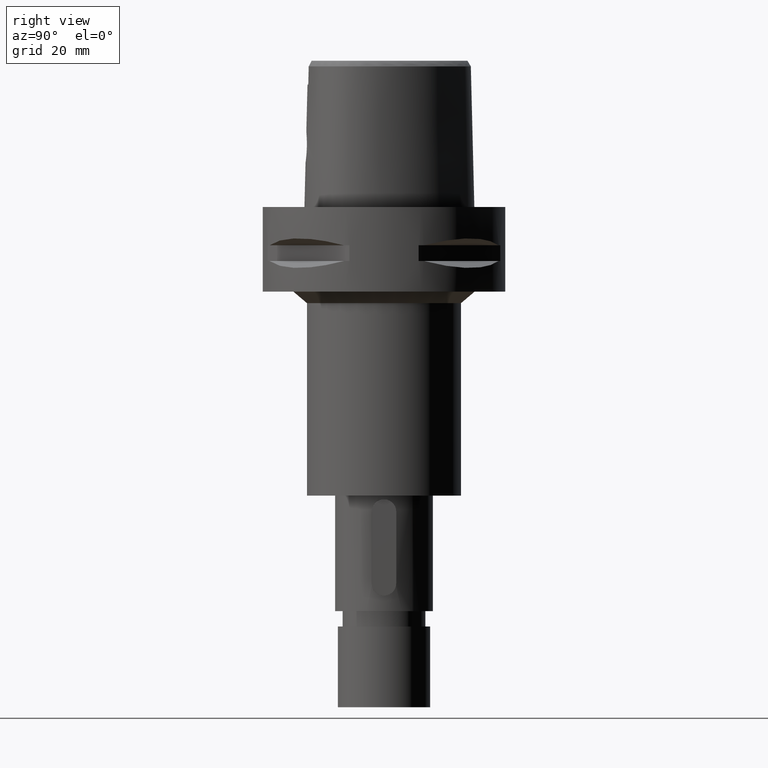
[diagram: clean part render]
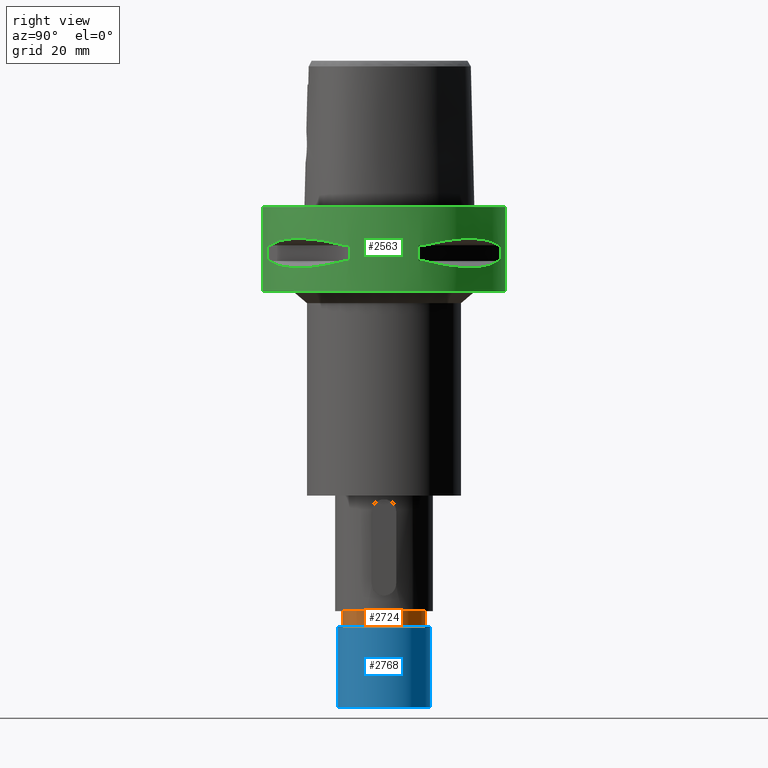
[diagram: same view with three faces highlighted in distinct colors, each labeled with its STEP entity id]
A machine part, right view with three faces highlighted in distinct colors.
Their STEP definitions:

[orange] entity #2724 — the highlighted cylindrical surface (partial cylindrical patch) has radius 10.75 mm, axis along (0, 0, -1).
#648=CARTESIAN_POINT('',(0.E0,1.304248841092E-14,-1.05E2));
#649=DIRECTION('',(0.E0,0.E0,-1.E0));
#650=DIRECTION('',(0.E0,1.E0,0.E0));
#651=AXIS2_PLACEMENT_3D('',#648,#649,#650);
#664=DIRECTION('',(0.E0,0.E0,-1.E0));
#665=VECTOR('',#664,4.E0);
#666=CARTESIAN_POINT('',(0.E0,1.075E1,-1.05E2));
#667=LINE('',#666,#665);
#671=DIRECTION('',(0.E0,0.E0,-1.E0));
#672=VECTOR('',#671,4.E0);
#673=CARTESIAN_POINT('',(0.E0,-1.075E1,-1.05E2));
#674=LINE('',#673,#672);
#702=CARTESIAN_POINT('',(0.E0,1.304248841092E-14,-1.09E2));
#703=DIRECTION('',(0.E0,0.E0,1.E0));
#704=DIRECTION('',(0.E0,-1.E0,0.E0));
#705=AXIS2_PLACEMENT_3D('',#702,#703,#704);
#1699=CARTESIAN_POINT('',(0.E0,1.075E1,-1.05E2));
#1700=CARTESIAN_POINT('',(0.E0,-1.075E1,-1.05E2));
#1701=VERTEX_POINT('',#1699);
#1702=VERTEX_POINT('',#1700);
#1703=CARTESIAN_POINT('',(0.E0,1.075E1,-1.09E2));
#1704=VERTEX_POINT('',#1703);
#1705=CARTESIAN_POINT('',(0.E0,-1.075E1,-1.09E2));
#1706=VERTEX_POINT('',#1705);
#2710=CARTESIAN_POINT('',(0.E0,1.304248841092E-14,6.5E0));
#2711=DIRECTION('',(0.E0,0.E0,-1.E0));
#2712=DIRECTION('',(0.E0,-1.E0,0.E0));
#2713=AXIS2_PLACEMENT_3D('',#2710,#2711,#2712);
#2714=CYLINDRICAL_SURFACE('',#2713,1.075E1);
#2716=ORIENTED_EDGE('',*,*,#2715,.T.);
#2718=ORIENTED_EDGE('',*,*,#2717,.F.);
#2720=ORIENTED_EDGE('',*,*,#2719,.F.);
#2721=ORIENTED_EDGE('',*,*,#2703,.F.);
#2722=EDGE_LOOP('',(#2716,#2718,#2720,#2721));
#2723=FACE_OUTER_BOUND('',#2722,.F.);
#652=CIRCLE('',#651,1.075E1);
#706=CIRCLE('',#705,1.075E1);
#2703=EDGE_CURVE('',#1701,#1702,#652,.T.);
#2715=EDGE_CURVE('',#1701,#1704,#667,.T.);
#2717=EDGE_CURVE('',#1706,#1704,#706,.T.);
#2719=EDGE_CURVE('',#1702,#1706,#674,.T.);
#2724=ADVANCED_FACE('',(#2723),#2714,.T.);

[blue] entity #2768 — the highlighted cylindrical surface (partial cylindrical patch) has radius 12 mm, axis along (0, 0, -1).
#678=CARTESIAN_POINT('',(0.E0,1.304248841092E-14,-1.09E2));
#679=DIRECTION('',(0.E0,0.E0,-1.E0));
#680=DIRECTION('',(0.E0,1.E0,0.E0));
#681=AXIS2_PLACEMENT_3D('',#678,#679,#680);
#710=DIRECTION('',(0.E0,0.E0,-1.E0));
#711=VECTOR('',#710,2.1E1);
#712=CARTESIAN_POINT('',(0.E0,1.2E1,-1.09E2));
#713=LINE('',#712,#711);
#717=DIRECTION('',(0.E0,0.E0,-1.E0));
#718=VECTOR('',#717,2.1E1);
#719=CARTESIAN_POINT('',(0.E0,-1.2E1,-1.09E2));
#720=LINE('',#719,#718);
#732=CARTESIAN_POINT('',(0.E0,1.304248841092E-14,-1.3E2));
#733=DIRECTION('',(0.E0,0.E0,1.E0));
#734=DIRECTION('',(0.E0,-1.E0,0.E0));
#735=AXIS2_PLACEMENT_3D('',#732,#733,#734);
#1707=CARTESIAN_POINT('',(0.E0,1.2E1,-1.09E2));
#1708=CARTESIAN_POINT('',(0.E0,-1.2E1,-1.09E2));
#1709=VERTEX_POINT('',#1707);
#1710=VERTEX_POINT('',#1708);
#1711=CARTESIAN_POINT('',(0.E0,1.2E1,-1.3E2));
#1712=VERTEX_POINT('',#1711);
#1713=CARTESIAN_POINT('',(0.E0,-1.2E1,-1.3E2));
#1714=VERTEX_POINT('',#1713);
#2754=CARTESIAN_POINT('',(0.E0,1.304248841092E-14,6.5E0));
#2755=DIRECTION('',(0.E0,0.E0,-1.E0));
#2756=DIRECTION('',(0.E0,-1.E0,0.E0));
#2757=AXIS2_PLACEMENT_3D('',#2754,#2755,#2756);
#2758=CYLINDRICAL_SURFACE('',#2757,1.2E1);
#2760=ORIENTED_EDGE('',*,*,#2759,.T.);
#2762=ORIENTED_EDGE('',*,*,#2761,.F.);
#2764=ORIENTED_EDGE('',*,*,#2763,.F.);
#2765=ORIENTED_EDGE('',*,*,#2743,.F.);
#2766=EDGE_LOOP('',(#2760,#2762,#2764,#2765));
#2767=FACE_OUTER_BOUND('',#2766,.F.);
#682=CIRCLE('',#681,1.2E1);
#736=CIRCLE('',#735,1.2E1);
#2743=EDGE_CURVE('',#1709,#1710,#682,.T.);
#2759=EDGE_CURVE('',#1709,#1712,#713,.T.);
#2761=EDGE_CURVE('',#1714,#1712,#736,.T.);
#2763=EDGE_CURVE('',#1710,#1714,#720,.T.);
#2768=ADVANCED_FACE('',(#2767),#2758,.T.);

[green] entity #2563 — the highlighted cylindrical surface (partial cylindrical patch) has radius 31.5 mm, axis along (0, 0, -1).
#290=CARTESIAN_POINT('',(0.E0,1.304248841092E-14,0.E0));
#291=DIRECTION('',(0.E0,0.E0,-1.E0));
#292=DIRECTION('',(0.E0,1.E0,0.E0));
#293=AXIS2_PLACEMENT_3D('',#290,#291,#292);
#382=DIRECTION('',(0.E0,0.E0,-1.E0));
#383=VECTOR('',#382,2.2E1);
#384=CARTESIAN_POINT('',(0.E0,-3.15E1,0.E0));
#385=LINE('',#384,#383);
#439=DIRECTION('',(0.E0,0.E0,-1.E0));
#440=VECTOR('',#439,2.2E1);
#441=CARTESIAN_POINT('',(0.E0,3.15E1,0.E0));
#442=LINE('',#441,#440);
#446=DIRECTION('',(0.E0,0.E0,-1.E0));
#447=VECTOR('',#446,4.1E0);
#448=CARTESIAN_POINT('',(8.981198972018E0,-3.019251670572E1,-9.95E0));
#449=LINE('',#448,#447);
#453=CARTESIAN_POINT('',(1.044775724750E1,-2.971690375018E1,-1.405E1));
#454=CARTESIAN_POINT('',(1.282388988809E1,-2.888151197365E1,-1.467900482380E1));
#455=CARTESIAN_POINT('',(1.711282138769E1,-2.674739463903E1,-1.555870402292E1));
#456=CARTESIAN_POINT('',(2.244574140438E1,-2.244574140438E1,-1.597971692370E1));
#457=CARTESIAN_POINT('',(2.674739463903E1,-1.711282138769E1,-1.555870402292E1));
#458=CARTESIAN_POINT('',(2.888151197365E1,-1.282388988809E1,-1.467900482380E1));
#459=CARTESIAN_POINT('',(2.971690375018E1,-1.044775724750E1,-1.405E1));
#464=DIRECTION('',(0.E0,0.E0,1.E0));
#465=VECTOR('',#464,4.1E0);
#466=CARTESIAN_POINT('',(3.019251670572E1,-8.981198972018E0,-1.405E1));
#467=LINE('',#466,#465);
#471=DIRECTION('',(0.E0,0.E0,-1.E0));
#472=VECTOR('',#471,4.1E0);
#473=CARTESIAN_POINT('',(3.019251670572E1,8.981198972018E0,-9.95E0));
#474=LINE('',#473,#472);
#478=CARTESIAN_POINT('',(2.971690375018E1,1.044775724750E1,-1.405E1));
#479=CARTESIAN_POINT('',(2.888151197365E1,1.282388988809E1,-1.467900482380E1));
#480=CARTESIAN_POINT('',(2.674739463903E1,1.711282138769E1,-1.555870402292E1));
#481=CARTESIAN_POINT('',(2.244574140438E1,2.244574140438E1,-1.597971692370E1));
#482=CARTESIAN_POINT('',(1.711282138769E1,2.674739463903E1,-1.555870402292E1));
#483=CARTESIAN_POINT('',(1.282388988809E1,2.888151197365E1,-1.467900482380E1));
#484=CARTESIAN_POINT('',(1.044775724750E1,2.971690375018E1,-1.405E1));
#489=DIRECTION('',(0.E0,0.E0,1.E0));
#490=VECTOR('',#489,4.1E0);
#491=CARTESIAN_POINT('',(8.981198972018E0,3.019251670572E1,-1.405E1));
#492=LINE('',#491,#490);
#504=CARTESIAN_POINT('',(0.E0,1.304248841092E-14,-2.2E1));
#505=DIRECTION('',(0.E0,0.E0,1.E0));
#506=DIRECTION('',(0.E0,-1.E0,0.E0));
#507=AXIS2_PLACEMENT_3D('',#504,#505,#506);
#866=CARTESIAN_POINT('',(1.044775724750E1,-2.971690375018E1,-9.949999999999E0));
#867=CARTESIAN_POINT('',(1.282388988809E1,-2.888151197365E1,-9.320995176198E0));
#868=CARTESIAN_POINT('',(1.711282138769E1,-2.674739463903E1,-8.441295977074E0));
#869=CARTESIAN_POINT('',(2.244574140438E1,-2.244574140438E1,-8.020283076294E0));
#870=CARTESIAN_POINT('',(2.674739463903E1,-1.711282138769E1,-8.441295977074E0));
#871=CARTESIAN_POINT('',(2.888151197365E1,-1.282388988809E1,-9.320995176198E0));
#872=CARTESIAN_POINT('',(2.971690375018E1,-1.044775724750E1,-9.949999999999E0));
#877=CARTESIAN_POINT('',(0.E0,1.304248841092E-14,-9.95E0));
#878=DIRECTION('',(0.E0,0.E0,1.E0));
#879=DIRECTION('',(9.433937698469E-1,-3.316748332541E-1,0.E0));
#880=AXIS2_PLACEMENT_3D('',#877,#878,#879);
#885=CARTESIAN_POINT('',(0.E0,1.304248841092E-14,-9.95E0));
#886=DIRECTION('',(0.E0,0.E0,1.E0));
#887=DIRECTION('',(2.851174276832E-1,-9.584925938323E-1,0.E0));
#888=AXIS2_PLACEMENT_3D('',#885,#886,#887);
#907=CARTESIAN_POINT('',(0.E0,1.304248841092E-14,-1.405E1));
#908=DIRECTION('',(0.E0,0.E0,-1.E0));
#909=DIRECTION('',(9.584925938323E-1,-2.851174276832E-1,0.E0));
#910=AXIS2_PLACEMENT_3D('',#907,#908,#909);
#915=CARTESIAN_POINT('',(0.E0,1.304248841092E-14,-1.405E1));
#916=DIRECTION('',(0.E0,0.E0,-1.E0));
#917=DIRECTION('',(3.316748332541E-1,-9.433937698469E-1,0.E0));
#918=AXIS2_PLACEMENT_3D('',#915,#916,#917);
#937=CARTESIAN_POINT('',(2.971690375018E1,1.044775724750E1,-9.949999999999E0));
#938=CARTESIAN_POINT('',(2.888151197365E1,1.282388988809E1,-9.320995176198E0));
#939=CARTESIAN_POINT('',(2.674739463903E1,1.711282138769E1,-8.441295977074E0));
#940=CARTESIAN_POINT('',(2.244574140438E1,2.244574140438E1,-8.020283076294E0));
#941=CARTESIAN_POINT('',(1.711282138769E1,2.674739463903E1,-8.441295977074E0));
#942=CARTESIAN_POINT('',(1.282388988809E1,2.888151197365E1,-9.320995176198E0));
#943=CARTESIAN_POINT('',(1.044775724750E1,2.971690375018E1,-9.949999999999E0));
#948=CARTESIAN_POINT('',(0.E0,1.304248841092E-14,-9.95E0));
#949=DIRECTION('',(0.E0,0.E0,1.E0));
#950=DIRECTION('',(3.316748332541E-1,9.433937698469E-1,0.E0));
#951=AXIS2_PLACEMENT_3D('',#948,#949,#950);
#956=CARTESIAN_POINT('',(0.E0,1.304248841092E-14,-9.95E0));
#957=DIRECTION('',(0.E0,0.E0,1.E0));
#958=DIRECTION('',(9.584925938323E-1,2.851174276832E-1,0.E0));
#959=AXIS2_PLACEMENT_3D('',#956,#957,#958);
#978=CARTESIAN_POINT('',(0.E0,1.304248841092E-14,-1.405E1));
#979=DIRECTION('',(0.E0,0.E0,-1.E0));
#980=DIRECTION('',(2.851174276832E-1,9.584925938323E-1,0.E0));
#981=AXIS2_PLACEMENT_3D('',#978,#979,#980);
#986=CARTESIAN_POINT('',(0.E0,1.304248841092E-14,-1.405E1));
#987=DIRECTION('',(0.E0,0.E0,-1.E0));
#988=DIRECTION('',(9.433937698469E-1,3.316748332541E-1,0.E0));
#989=AXIS2_PLACEMENT_3D('',#986,#987,#988);
#1610=CARTESIAN_POINT('',(0.E0,-3.15E1,0.E0));
#1611=CARTESIAN_POINT('',(0.E0,3.15E1,0.E0));
#1612=VERTEX_POINT('',#1610);
#1613=VERTEX_POINT('',#1611);
#1614=CARTESIAN_POINT('',(0.E0,3.15E1,-2.2E1));
#1615=VERTEX_POINT('',#1614);
#1616=CARTESIAN_POINT('',(0.E0,-3.15E1,-2.2E1));
#1617=VERTEX_POINT('',#1616);
#1644=VERTEX_POINT('',#866);
#1645=VERTEX_POINT('',#872);
#1646=CARTESIAN_POINT('',(8.981198972020E0,-3.019251670572E1,-9.95E0));
#1647=VERTEX_POINT('',#1646);
#1648=CARTESIAN_POINT('',(8.981198972018E0,-3.019251670572E1,-1.405E1));
#1649=VERTEX_POINT('',#1648);
#1650=CARTESIAN_POINT('',(1.044775724750E1,-2.971690375018E1,-1.405E1));
#1651=VERTEX_POINT('',#1650);
#1652=VERTEX_POINT('',#459);
#1653=CARTESIAN_POINT('',(3.019251670572E1,-8.981198972020E0,-1.405E1));
#1654=VERTEX_POINT('',#1653);
#1655=CARTESIAN_POINT('',(3.019251670572E1,-8.981198972018E0,-9.95E0));
#1656=VERTEX_POINT('',#1655);
#1657=VERTEX_POINT('',#937);
#1658=VERTEX_POINT('',#943);
#1659=CARTESIAN_POINT('',(3.019251670572E1,8.981198972020E0,-9.95E0));
#1660=VERTEX_POINT('',#1659);
#1661=CARTESIAN_POINT('',(3.019251670572E1,8.981198972018E0,-1.405E1));
#1662=VERTEX_POINT('',#1661);
#1663=CARTESIAN_POINT('',(2.971690375018E1,1.044775724750E1,-1.405E1));
#1664=VERTEX_POINT('',#1663);
#1665=VERTEX_POINT('',#484);
#1666=CARTESIAN_POINT('',(8.981198972020E0,3.019251670572E1,-1.405E1));
#1667=VERTEX_POINT('',#1666);
#1668=CARTESIAN_POINT('',(8.981198972018E0,3.019251670572E1,-9.95E0));
#1669=VERTEX_POINT('',#1668);
#2515=CARTESIAN_POINT('',(0.E0,1.304248841092E-14,6.5E0));
#2516=DIRECTION('',(0.E0,0.E0,-1.E0));
#2517=DIRECTION('',(0.E0,-1.E0,0.E0));
#2518=AXIS2_PLACEMENT_3D('',#2515,#2516,#2517);
#2519=CYLINDRICAL_SURFACE('',#2518,3.15E1);
#2520=ORIENTED_EDGE('',*,*,#2469,.T.);
#2522=ORIENTED_EDGE('',*,*,#2521,.F.);
#2523=ORIENTED_EDGE('',*,*,#2472,.F.);
#2524=ORIENTED_EDGE('',*,*,#2454,.F.);
#2525=EDGE_LOOP('',(#2520,#2522,#2523,#2524));
#2526=FACE_OUTER_BOUND('',#2525,.F.);
#2528=ORIENTED_EDGE('',*,*,#2527,.F.);
#2530=ORIENTED_EDGE('',*,*,#2529,.F.);
#2532=ORIENTED_EDGE('',*,*,#2531,.T.);
#2534=ORIENTED_EDGE('',*,*,#2533,.F.);
#2536=ORIENTED_EDGE('',*,*,#2535,.T.);
#2538=ORIENTED_EDGE('',*,*,#2537,.F.);
#2540=ORIENTED_EDGE('',*,*,#2539,.T.);
#2542=ORIENTED_EDGE('',*,*,#2541,.F.);
#2543=EDGE_LOOP('',(#2528,#2530,#2532,#2534,#2536,#2538,#2540,#2542));
#2544=FACE_BOUND('',#2543,.F.);
#2546=ORIENTED_EDGE('',*,*,#2545,.F.);
#2548=ORIENTED_EDGE('',*,*,#2547,.F.);
#2550=ORIENTED_EDGE('',*,*,#2549,.T.);
#2552=ORIENTED_EDGE('',*,*,#2551,.F.);
#2554=ORIENTED_EDGE('',*,*,#2553,.T.);
#2556=ORIENTED_EDGE('',*,*,#2555,.F.);
#2558=ORIENTED_EDGE('',*,*,#2557,.T.);
#2560=ORIENTED_EDGE('',*,*,#2559,.F.);
#2561=EDGE_LOOP('',(#2546,#2548,#2550,#2552,#2554,#2556,#2558,#2560));
#2562=FACE_BOUND('',#2561,.F.);
#294=CIRCLE('',#293,3.15E1);
#460=B_SPLINE_CURVE_WITH_KNOTS('',3,(#453,#454,#455,#456,#457,#458,#459),
.UNSPECIFIED.,.F.,.F.,(4,1,1,1,4),(0.E0,2.5E-1,5.E-1,7.5E-1,1.E0),
.UNSPECIFIED.);
#485=B_SPLINE_CURVE_WITH_KNOTS('',3,(#478,#479,#480,#481,#482,#483,#484),
.UNSPECIFIED.,.F.,.F.,(4,1,1,1,4),(0.E0,2.5E-1,5.E-1,7.5E-1,1.E0),
.UNSPECIFIED.);
#508=CIRCLE('',#507,3.15E1);
#873=B_SPLINE_CURVE_WITH_KNOTS('',3,(#866,#867,#868,#869,#870,#871,#872),
.UNSPECIFIED.,.F.,.F.,(4,1,1,1,4),(0.E0,2.5E-1,5.E-1,7.5E-1,1.E0),
.UNSPECIFIED.);
#881=CIRCLE('',#880,3.15E1);
#889=CIRCLE('',#888,3.15E1);
#911=CIRCLE('',#910,3.15E1);
#919=CIRCLE('',#918,3.15E1);
#944=B_SPLINE_CURVE_WITH_KNOTS('',3,(#937,#938,#939,#940,#941,#942,#943),
.UNSPECIFIED.,.F.,.F.,(4,1,1,1,4),(0.E0,2.5E-1,5.E-1,7.5E-1,1.E0),
.UNSPECIFIED.);
#952=CIRCLE('',#951,3.15E1);
#960=CIRCLE('',#959,3.15E1);
#982=CIRCLE('',#981,3.15E1);
#990=CIRCLE('',#989,3.15E1);
#2454=EDGE_CURVE('',#1613,#1612,#294,.T.);
#2469=EDGE_CURVE('',#1613,#1615,#442,.T.);
#2472=EDGE_CURVE('',#1612,#1617,#385,.T.);
#2521=EDGE_CURVE('',#1617,#1615,#508,.T.);
#2527=EDGE_CURVE('',#1644,#1645,#873,.T.);
#2529=EDGE_CURVE('',#1647,#1644,#889,.T.);
#2531=EDGE_CURVE('',#1647,#1649,#449,.T.);
#2533=EDGE_CURVE('',#1651,#1649,#919,.T.);
#2535=EDGE_CURVE('',#1651,#1652,#460,.T.);
#2537=EDGE_CURVE('',#1654,#1652,#911,.T.);
#2539=EDGE_CURVE('',#1654,#1656,#467,.T.);
#2541=EDGE_CURVE('',#1645,#1656,#881,.T.);
#2545=EDGE_CURVE('',#1657,#1658,#944,.T.);
#2547=EDGE_CURVE('',#1660,#1657,#960,.T.);
#2549=EDGE_CURVE('',#1660,#1662,#474,.T.);
#2551=EDGE_CURVE('',#1664,#1662,#990,.T.);
#2553=EDGE_CURVE('',#1664,#1665,#485,.T.);
#2555=EDGE_CURVE('',#1667,#1665,#982,.T.);
#2557=EDGE_CURVE('',#1667,#1669,#492,.T.);
#2559=EDGE_CURVE('',#1658,#1669,#952,.T.);
#2563=ADVANCED_FACE('',(#2526,#2544,#2562),#2519,.T.);